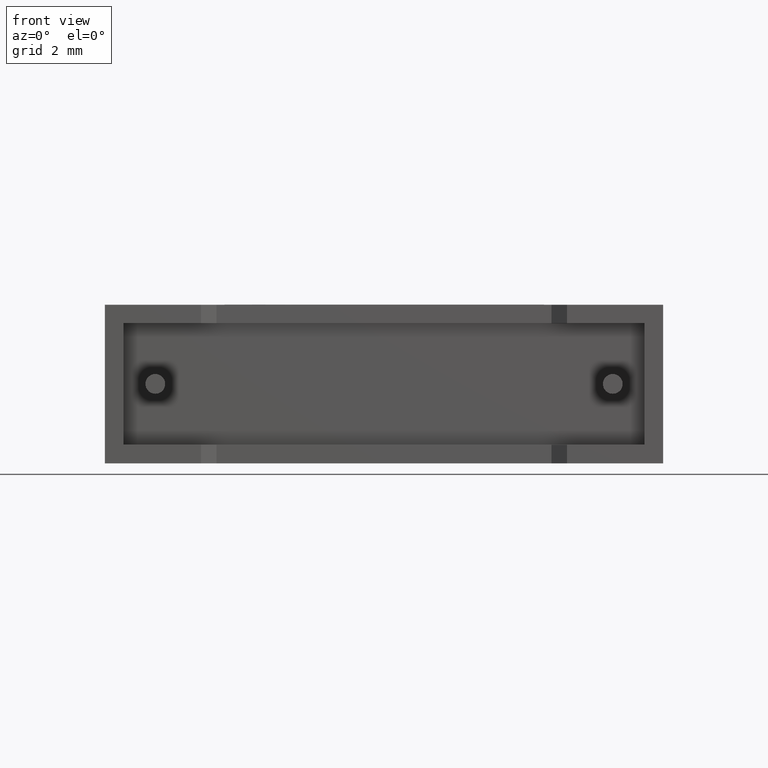
[diagram: clean part render]
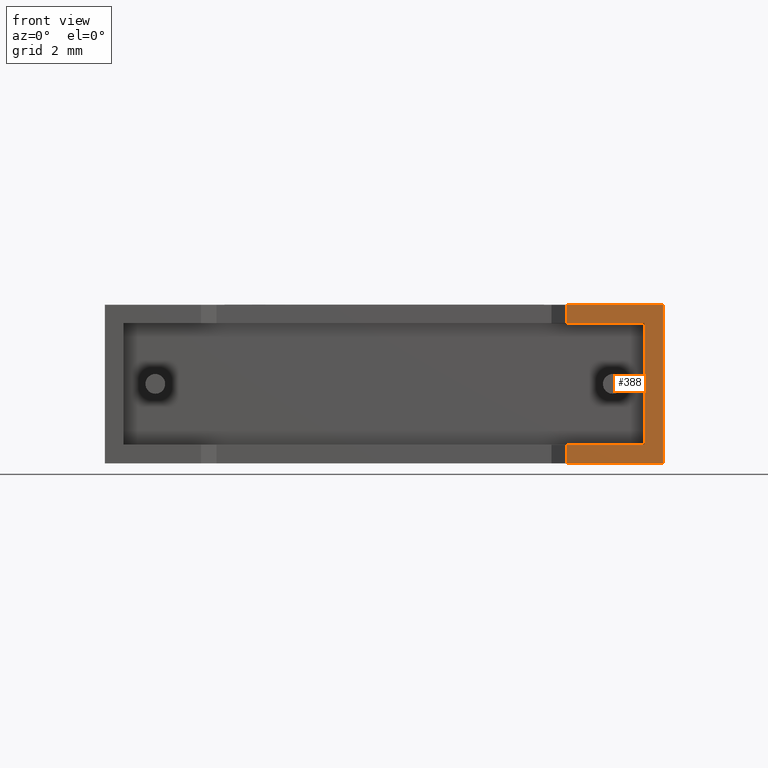
[diagram: same view with one face highlighted and labeled with its STEP entity id]
A machine part, front view. The second image highlights one B-rep face of the part: STEP entity #388.
In plain terms, the highlighted planar face has unit normal (0, 1, 0).
Its self-contained STEP definition (entity closure, byte-faithful):
#111 = EDGE_CURVE ( 'NONE', #2996, #2953, #2554, .T. ) ;
#160 = CARTESIAN_POINT ( 'NONE',  ( 17.69000006100000277, 0.000000000000000000, 4.590000060999998688 ) ) ;
#202 = CARTESIAN_POINT ( 'NONE',  ( 17.69000006100000277, 0.000000000000000000, 0.6099999390000000465 ) ) ;
#233 = EDGE_CURVE ( 'NONE', #2953, #2206, #2723, .T. ) ;
#258 = ORIENTED_EDGE ( 'NONE', *, *, #1553, .F. ) ;
#280 = VECTOR ( 'NONE', #1126, 1000.000000000000000 ) ;
#388 = ADVANCED_FACE ( 'NONE', ( #1598 ), #396, .F. ) ;
#396 = PLANE ( 'NONE',  #819 ) ;
#402 = CARTESIAN_POINT ( 'NONE',  ( 15.15000000000000036, 1.928818708657082084E-16, 0.000000000000000000 ) ) ;
#413 = LINE ( 'NONE', #1374, #2280 ) ;
#441 = CARTESIAN_POINT ( 'NONE',  ( 15.15000000000000036, 1.928818708657082084E-16, 5.200000000000000178 ) ) ;
#561 = CARTESIAN_POINT ( 'NONE',  ( 17.69000006100000277, 0.000000000000000000, 4.590000060999998688 ) ) ;
#639 = CARTESIAN_POINT ( 'NONE',  ( 15.15000000000000036, 1.928818708657082084E-16, 0.000000000000000000 ) ) ;
#764 = CARTESIAN_POINT ( 'NONE',  ( 17.69000006100000277, 0.000000000000000000, 0.6099999390000000465 ) ) ;
#800 = CARTESIAN_POINT ( 'NONE',  ( 18.30000000000000071, 0.000000000000000000, 5.200000000000000178 ) ) ;
#809 = ORIENTED_EDGE ( 'NONE', *, *, #1799, .T. ) ;
#819 = AXIS2_PLACEMENT_3D ( 'NONE', #1889, #2599, #2823 ) ;
#874 = CARTESIAN_POINT ( 'NONE',  ( 18.30000000000000071, 0.000000000000000000, 0.000000000000000000 ) ) ;
#918 = VECTOR ( 'NONE', #3017, 1000.000000000000000 ) ;
#995 = LINE ( 'NONE', #1476, #2779 ) ;
#1030 = CARTESIAN_POINT ( 'NONE',  ( 15.15000000000000036, 1.928818708657082084E-16, 4.590000060999998688 ) ) ;
#1041 = LINE ( 'NONE', #2904, #2669 ) ;
#1047 = VERTEX_POINT ( 'NONE', #639 ) ;
#1126 = DIRECTION ( 'NONE',  ( -1.000000000000000000, 0.000000000000000000, -1.015646055963656327E-16 ) ) ;
#1168 = VECTOR ( 'NONE', #1400, 1000.000000000000000 ) ;
#1338 = ORIENTED_EDGE ( 'NONE', *, *, #111, .F. ) ;
#1345 = EDGE_CURVE ( 'NONE', #2813, #2014, #413, .T. ) ;
#1370 = CARTESIAN_POINT ( 'NONE',  ( 15.15000000000000036, 1.928818708657082084E-16, 0.000000000000000000 ) ) ;
#1374 = CARTESIAN_POINT ( 'NONE',  ( 18.30000000000000071, 0.000000000000000000, 5.200000000000000178 ) ) ;
#1400 = DIRECTION ( 'NONE',  ( -0.000000000000000000, -0.000000000000000000, 1.000000000000000000 ) ) ;
#1435 = ORIENTED_EDGE ( 'NONE', *, *, #233, .F. ) ;
#1476 = CARTESIAN_POINT ( 'NONE',  ( 0.000000000000000000, 0.000000000000000000, 0.000000000000000000 ) ) ;
#1529 = VERTEX_POINT ( 'NONE', #1030 ) ;
#1553 = EDGE_CURVE ( 'NONE', #1723, #2813, #1041, .T. ) ;
#1574 = DIRECTION ( 'NONE',  ( 1.000000000000000000, 0.000000000000000000, 0.000000000000000000 ) ) ;
#1598 = FACE_OUTER_BOUND ( 'NONE', #2709, .T. ) ;
#1654 = EDGE_CURVE ( 'NONE', #1529, #1723, #2509, .T. ) ;
#1723 = VERTEX_POINT ( 'NONE', #441 ) ;
#1799 = EDGE_CURVE ( 'NONE', #1047, #2014, #995, .T. ) ;
#1822 = LINE ( 'NONE', #160, #280 ) ;
#1846 = DIRECTION ( 'NONE',  ( -0.000000000000000000, -0.000000000000000000, 1.000000000000000000 ) ) ;
#1889 = CARTESIAN_POINT ( 'NONE',  ( 0.000000000000000000, 0.000000000000000000, 5.200000000000000178 ) ) ;
#2014 = VERTEX_POINT ( 'NONE', #874 ) ;
#2075 = CARTESIAN_POINT ( 'NONE',  ( 15.15000000000000036, 1.928818708657082084E-16, 0.6099999390000000465 ) ) ;
#2113 = ORIENTED_EDGE ( 'NONE', *, *, #2329, .F. ) ;
#2206 = VERTEX_POINT ( 'NONE', #561 ) ;
#2233 = VECTOR ( 'NONE', #1846, 1000.000000000000000 ) ;
#2280 = VECTOR ( 'NONE', #2545, 1000.000000000000000 ) ;
#2285 = LINE ( 'NONE', #402, #1168 ) ;
#2321 = CARTESIAN_POINT ( 'NONE',  ( 0.6099999390000000465, 0.000000000000000000, 0.6099999390000000465 ) ) ;
#2329 = EDGE_CURVE ( 'NONE', #2206, #1529, #1822, .T. ) ;
#2404 = DIRECTION ( 'NONE',  ( 0.000000000000000000, 0.000000000000000000, 1.000000000000000000 ) ) ;
#2445 = ORIENTED_EDGE ( 'NONE', *, *, #1345, .F. ) ;
#2473 = VECTOR ( 'NONE', #2404, 1000.000000000000000 ) ;
#2509 = LINE ( 'NONE', #1370, #2233 ) ;
#2545 = DIRECTION ( 'NONE',  ( -0.000000000000000000, -0.000000000000000000, -1.000000000000000000 ) ) ;
#2554 = LINE ( 'NONE', #2321, #918 ) ;
#2562 = ORIENTED_EDGE ( 'NONE', *, *, #1654, .F. ) ;
#2599 = DIRECTION ( 'NONE',  ( 0.000000000000000000, 1.000000000000000000, 0.000000000000000000 ) ) ;
#2669 = VECTOR ( 'NONE', #1574, 1000.000000000000000 ) ;
#2709 = EDGE_LOOP ( 'NONE', ( #2815, #809, #2445, #258, #2562, #2113, #1435, #1338 ) ) ;
#2723 = LINE ( 'NONE', #764, #2473 ) ;
#2779 = VECTOR ( 'NONE', #2856, 1000.000000000000000 ) ;
#2813 = VERTEX_POINT ( 'NONE', #800 ) ;
#2815 = ORIENTED_EDGE ( 'NONE', *, *, #2963, .F. ) ;
#2823 = DIRECTION ( 'NONE',  ( 0.000000000000000000, -0.000000000000000000, 1.000000000000000000 ) ) ;
#2856 = DIRECTION ( 'NONE',  ( 1.000000000000000000, 0.000000000000000000, 0.000000000000000000 ) ) ;
#2904 = CARTESIAN_POINT ( 'NONE',  ( 0.000000000000000000, 0.000000000000000000, 5.200000000000000178 ) ) ;
#2953 = VERTEX_POINT ( 'NONE', #202 ) ;
#2963 = EDGE_CURVE ( 'NONE', #1047, #2996, #2285, .T. ) ;
#2996 = VERTEX_POINT ( 'NONE', #2075 ) ;
#3017 = DIRECTION ( 'NONE',  ( 1.000000000000000000, 0.000000000000000000, 0.000000000000000000 ) ) ;